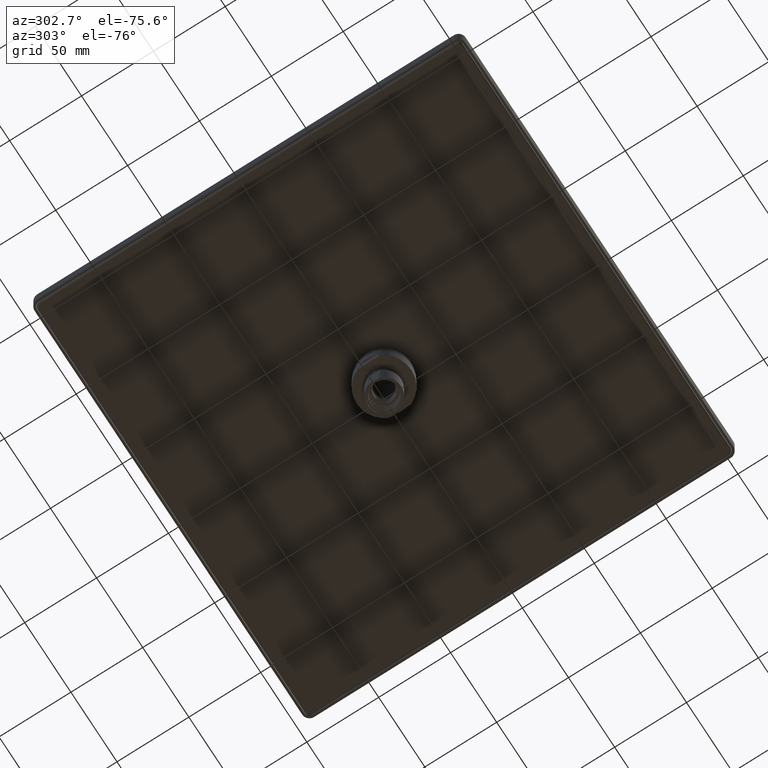
[diagram: clean part render]
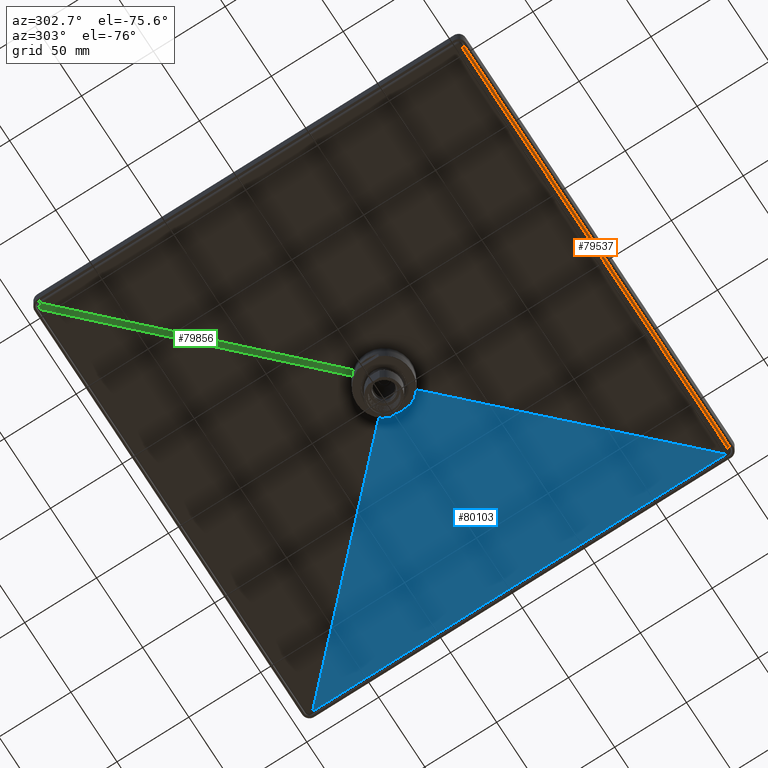
[diagram: same view with three faces highlighted in distinct colors, each labeled with its STEP entity id]
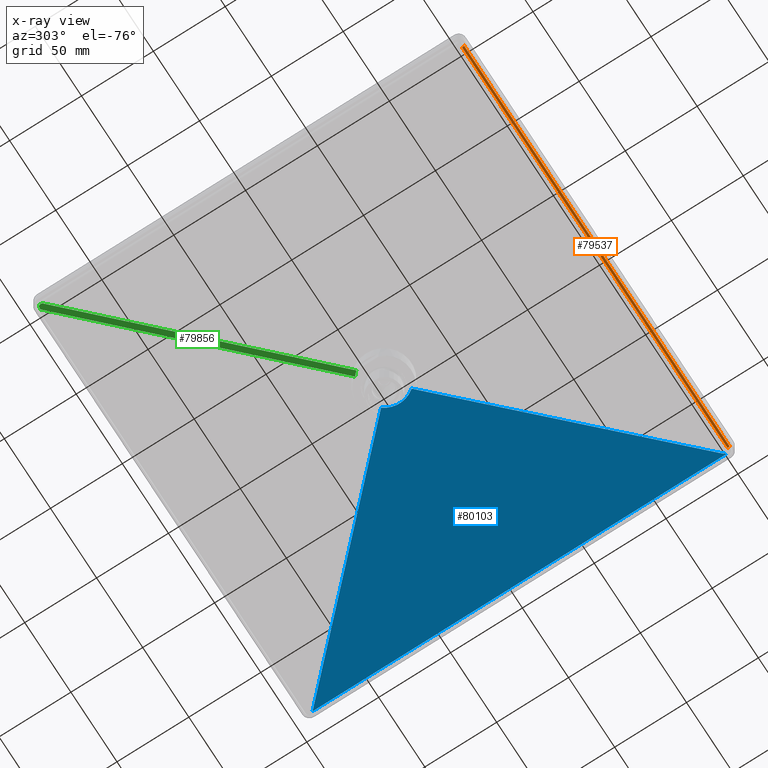
[diagram: x-ray of the same camera — body ghosted, the three highlighted faces saturated]
A machine part, auxiliary view with three faces highlighted in distinct colors.
The next image is the same camera in x-ray (body ghosted, the three faces saturated) — at least one of them is partly hidden behind the body in this view.
Their STEP definitions:

[orange] entity #79537 — the highlighted cylindrical surface (edge-blend (fillet) strip) has radius 1.5 mm, axis along (1, 0, 0).
#78460=DIRECTION('',(-1.E0,2.430451766408E-14,-5.996861040177E-12));
#78461=VECTOR('',#78460,1.132856508047E1);
#78462=CARTESIAN_POINT('',(5.664282540236E0,-5.830708661417E0,
-2.872554226659E-2));
#78463=LINE('',#78462,#78461);
#78464=DIRECTION('',(1.E0,5.746842402508E-14,-3.654693841650E-12));
#78465=VECTOR('',#78464,1.132856508047E1);
#78466=CARTESIAN_POINT('',(-5.664282540236E0,-5.772464911086E0,
3.032785483883E-2));
#78467=LINE('',#78466,#78465);
#78598=CARTESIAN_POINT('',(5.664282539999E0,-5.771653543309E0,
-2.872168948316E-2));
#78599=DIRECTION('',(-1.E0,-7.676146789291E-11,6.005432839082E-9));
#78600=DIRECTION('',(7.676324761356E-11,-1.E0,4.292257000937E-9));
#78601=AXIS2_PLACEMENT_3D('',#78598,#78599,#78600);
#78849=CARTESIAN_POINT('',(-5.664282538910E0,-5.771653543308E0,
-2.872168931831E-2));
#78850=DIRECTION('',(1.E0,-1.056758697700E-10,3.318102306347E-8));
#78851=DIRECTION('',(-3.317934963955E-8,-1.373916102311E-2,9.999056132728E-1));
#78852=AXIS2_PLACEMENT_3D('',#78849,#78850,#78851);
#79224=CARTESIAN_POINT('',(-5.664282540236E0,-5.772464911086E0,
3.032785483883E-2));
#79225=CARTESIAN_POINT('',(5.664282540234E0,-5.772464911086E0,
3.032785479742E-2));
#79226=VERTEX_POINT('',#79224);
#79227=VERTEX_POINT('',#79225);
#79228=CARTESIAN_POINT('',(5.664282540236E0,-5.830708661417E0,
-2.872554226659E-2));
#79229=CARTESIAN_POINT('',(-5.664282540236E0,-5.830708661417E0,
-2.872554233452E-2));
#79230=VERTEX_POINT('',#79228);
#79231=VERTEX_POINT('',#79229);
#79523=CARTESIAN_POINT('',(5.718419370079E0,-5.771653543307E0,
-2.872168922969E-2));
#79524=DIRECTION('',(-1.E0,0.E0,0.E0));
#79525=DIRECTION('',(0.E0,-1.E0,0.E0));
#79526=AXIS2_PLACEMENT_3D('',#79523,#79524,#79525);
#79527=CYLINDRICAL_SURFACE('',#79526,5.905511811024E-2);
#79529=ORIENTED_EDGE('',*,*,#79528,.T.);
#79531=ORIENTED_EDGE('',*,*,#79530,.F.);
#79532=ORIENTED_EDGE('',*,*,#79512,.T.);
#79534=ORIENTED_EDGE('',*,*,#79533,.F.);
#79535=EDGE_LOOP('',(#79529,#79531,#79532,#79534));
#79536=FACE_OUTER_BOUND('',#79535,.F.);
#79537=ADVANCED_FACE('',(#79536),#79527,.T.);
#78602=CIRCLE('',#78601,5.905511810770E-2);
#78853=CIRCLE('',#78852,5.905511810770E-2);
#79512=EDGE_CURVE('',#79226,#79227,#78467,.T.);
#79528=EDGE_CURVE('',#79230,#79231,#78463,.T.);
#79530=EDGE_CURVE('',#79226,#79231,#78853,.T.);
#79533=EDGE_CURVE('',#79230,#79227,#78602,.T.);

[blue] entity #80103 — the highlighted planar face has unit normal (-0.0137, 0, 0.9999).
#78432=CARTESIAN_POINT('',(-5.270524384851E-1,-4.188700676340E-1,
1.024022247137E-1));
#78433=CARTESIAN_POINT('',(-5.825346260716E-1,-3.490583896950E-1,
1.016398740446E-1));
#78434=CARTESIAN_POINT('',(-6.517643601838E-1,-2.094350338170E-1,
1.006886257896E-1));
#78435=CARTESIAN_POINT('',(-6.839603395931E-1,0.E0,1.002462382863E-1));
#78436=CARTESIAN_POINT('',(-6.517643601838E-1,2.094350338170E-1,
1.006886257896E-1));
#78437=CARTESIAN_POINT('',(-5.825346260716E-1,3.490583896950E-1,
1.016398740446E-1));
#78438=CARTESIAN_POINT('',(-5.270524384851E-1,4.188700676340E-1,
1.024022247137E-1));
#78744=CARTESIAN_POINT('',(-5.772464911086E0,5.664282540236E0,
3.032785483883E-2));
#78805=DIRECTION('',(-1.144664380308E-14,-1.E0,-3.300161490433E-12));
#78806=VECTOR('',#78805,1.132856508047E1);
#78807=CARTESIAN_POINT('',(-5.772464911086E0,5.664282540236E0,
3.032785483883E-2));
#78808=LINE('',#78807,#78806);
#78809=DIRECTION('',(7.070734080761E-1,-7.070734080764E-1,9.715512480473E-3));
#78810=VECTOR('',#78809,7.418483586977E0);
#78811=CARTESIAN_POINT('',(-5.772464911086E0,5.664282540236E0,
3.032785483883E-2));
#78812=LINE('',#78811,#78810);
#78813=DIRECTION('',(-7.070734080761E-1,-7.070734080764E-1,-9.715512485512E-3));
#78814=VECTOR('',#78813,7.418483586977E0);
#78815=CARTESIAN_POINT('',(-5.270524384860E-1,-4.188700676332E-1,
1.024022247143E-1));
#78816=LINE('',#78815,#78814);
#78837=CARTESIAN_POINT('',(-5.270524384860E-1,-4.188700676332E-1,
1.024022247143E-1));
#79220=VERTEX_POINT('',#78837);
#79221=VERTEX_POINT('',#78438);
#79302=VERTEX_POINT('',#78744);
#79305=CARTESIAN_POINT('',(-5.772464911086E0,-5.664282540236E0,
3.032785480144E-2));
#79306=VERTEX_POINT('',#79305);
#80091=CARTESIAN_POINT('',(-1.181102362205E-1,-9.862204724409E0,
1.080212778746E-1));
#80092=DIRECTION('',(1.373916109839E-2,0.E0,-9.999056132717E-1));
#80093=DIRECTION('',(-9.999056132717E-1,0.E0,-1.373916109839E-2));
#80094=AXIS2_PLACEMENT_3D('',#80091,#80092,#80093);
#80095=PLANE('',#80094);
#80096=ORIENTED_EDGE('',*,*,#80084,.F.);
#80097=ORIENTED_EDGE('',*,*,#79985,.T.);
#80098=ORIENTED_EDGE('',*,*,#79491,.F.);
#80100=ORIENTED_EDGE('',*,*,#80099,.T.);
#80101=EDGE_LOOP('',(#80096,#80097,#80098,#80100));
#80102=FACE_OUTER_BOUND('',#80101,.F.);
#80103=ADVANCED_FACE('',(#80102),#80095,.F.);
#78439=B_SPLINE_CURVE_WITH_KNOTS('',3,(#78432,#78433,#78434,#78435,#78436,
#78437,#78438),.UNSPECIFIED.,.F.,.F.,(4,1,1,1,4),(0.E0,2.5E-1,5.E-1,7.5E-1,
1.E0),.UNSPECIFIED.);
#79491=EDGE_CURVE('',#79220,#79221,#78439,.T.);
#79985=EDGE_CURVE('',#79302,#79221,#78812,.T.);
#80084=EDGE_CURVE('',#79302,#79306,#78808,.T.);
#80099=EDGE_CURVE('',#79220,#79306,#78816,.T.);

[green] entity #79856 — the highlighted cylindrical surface (partial cylindrical patch) has radius 200 mm, axis along (-0.7071, 0.7071, 0.0097).
#78661=DIRECTION('',(7.070734080760E-1,7.070734080765E-1,-9.715512486017E-3));
#78662=VECTOR('',#78661,7.418483586976E0);
#78663=CARTESIAN_POINT('',(5.270524384869E-1,4.188700676318E-1,
1.024022247140E-1));
#78664=LINE('',#78663,#78662);
#78665=CARTESIAN_POINT('',(5.664282540235E0,5.772464911087E0,
3.032785484125E-2));
#78666=CARTESIAN_POINT('',(5.669671128555E0,5.772444629747E0,
3.032813342311E-2));
#78667=CARTESIAN_POINT('',(5.680448396919E0,5.772404066377E0,
3.032311663211E-2));
#78668=CARTESIAN_POINT('',(5.696614555149E0,5.772343219634E0,
3.029886823988E-2));
#78669=CARTESIAN_POINT('',(5.707392157285E0,5.772302653865E0,
3.027155357944E-2));
#78670=CARTESIAN_POINT('',(5.712780994102E0,5.772282370714E0,
3.025510909337E-2));
#78672=CARTESIAN_POINT('',(5.712780994102E0,5.772282370714E0,
3.025510909337E-2));
#78673=CARTESIAN_POINT('',(5.728303599652E0,5.772222870588E0,
3.020774861702E-2));
#78674=CARTESIAN_POINT('',(5.759261883710E0,5.759261595850E0,
3.019118320876E-2));
#78675=CARTESIAN_POINT('',(5.772222961086E0,5.728304345890E0,
3.020774585242E-2));
#78676=CARTESIAN_POINT('',(5.772282370716E0,5.712780992377E0,
3.025510903017E-2));
#78678=CARTESIAN_POINT('',(5.772282370716E0,5.712780992377E0,
3.025510903017E-2));
#78679=CARTESIAN_POINT('',(5.772302653867E0,5.707392155567E0,
3.027155359257E-2));
#78680=CARTESIAN_POINT('',(5.772343219631E0,5.696614555974E0,
3.029886823814E-2));
#78681=CARTESIAN_POINT('',(5.772404066377E0,5.680448396708E0,
3.032311661843E-2));
#78682=CARTESIAN_POINT('',(5.772444629742E0,5.669671128564E0,
3.032813345621E-2));
#78683=CARTESIAN_POINT('',(5.772464911086E0,5.664282540234E0,
3.032785479742E-2));
#78685=CARTESIAN_POINT('',(5.270524384869E-1,4.188700676318E-1,
1.024022247140E-1));
#78686=CARTESIAN_POINT('',(5.164330672138E-1,4.322321241673E-1,
1.025481397391E-1));
#78687=CARTESIAN_POINT('',(4.942545533960E-1,4.580608113299E-1,
1.027435984438E-1));
#78688=CARTESIAN_POINT('',(4.580608113305E-1,4.942545533954E-1,
1.027435984438E-1));
#78689=CARTESIAN_POINT('',(4.322321241685E-1,5.164330672127E-1,
1.025481397391E-1));
#78690=CARTESIAN_POINT('',(4.188700676331E-1,5.270524384858E-1,
1.024022247140E-1));
#78730=DIRECTION('',(-7.070734080764E-1,-7.070734080762E-1,9.715512480108E-3));
#78731=VECTOR('',#78730,7.418483586976E0);
#78732=CARTESIAN_POINT('',(5.664282540235E0,5.772464911087E0,
3.032785484125E-2));
#78733=LINE('',#78732,#78731);
#78734=CARTESIAN_POINT('',(4.188700676331E-1,5.270524384858E-1,
1.024022247137E-1));
#79190=VERTEX_POINT('',#78734);
#79191=VERTEX_POINT('',#78685);
#79295=CARTESIAN_POINT('',(5.772464911086E0,5.664282540234E0,
3.032785479742E-2));
#79296=VERTEX_POINT('',#79295);
#79297=VERTEX_POINT('',#78665);
#79298=VERTEX_POINT('',#78670);
#79299=VERTEX_POINT('',#78676);
#79839=CARTESIAN_POINT('',(-2.103253228346E1,-2.103253228346E1,
-7.476118227358E0));
#79840=DIRECTION('',(7.070734080763E-1,7.070734080764E-1,-9.715512477384E-3));
#79841=DIRECTION('',(0.E0,1.373916109839E-2,9.999056132717E-1));
#79842=AXIS2_PLACEMENT_3D('',#79839,#79840,#79841);
#79843=CYLINDRICAL_SURFACE('',#79842,7.874015748031E0);
#79845=ORIENTED_EDGE('',*,*,#79844,.T.);
#79847=ORIENTED_EDGE('',*,*,#79846,.T.);
#79849=ORIENTED_EDGE('',*,*,#79848,.T.);
#79850=ORIENTED_EDGE('',*,*,#79834,.F.);
#79851=ORIENTED_EDGE('',*,*,#79358,.T.);
#79853=ORIENTED_EDGE('',*,*,#79852,.F.);
#79854=EDGE_LOOP('',(#79845,#79847,#79849,#79850,#79851,#79853));
#79855=FACE_OUTER_BOUND('',#79854,.F.);
#79856=ADVANCED_FACE('',(#79855),#79843,.T.);
#78671=B_SPLINE_CURVE_WITH_KNOTS('',3,(#78665,#78666,#78667,#78668,#78669,
#78670),.UNSPECIFIED.,.F.,.F.,(4,1,1,4),(0.E0,3.333333333333E-1,
6.666666666667E-1,1.E0),.UNSPECIFIED.);
#78677=B_SPLINE_CURVE_WITH_KNOTS('',3,(#78672,#78673,#78674,#78675,#78676),
.UNSPECIFIED.,.F.,.F.,(4,1,4),(0.E0,5.E-1,1.E0),.UNSPECIFIED.);
#78684=B_SPLINE_CURVE_WITH_KNOTS('',3,(#78678,#78679,#78680,#78681,#78682,
#78683),.UNSPECIFIED.,.F.,.F.,(4,1,1,4),(0.E0,3.333333333333E-1,
6.666666666667E-1,1.E0),.UNSPECIFIED.);
#78691=B_SPLINE_CURVE_WITH_KNOTS('',3,(#78685,#78686,#78687,#78688,#78689,
#78690),.UNSPECIFIED.,.F.,.F.,(4,1,1,4),(0.E0,3.333333333333E-1,
6.666666666667E-1,1.E0),.UNSPECIFIED.);
#79358=EDGE_CURVE('',#79191,#79190,#78691,.T.);
#79834=EDGE_CURVE('',#79191,#79296,#78664,.T.);
#79844=EDGE_CURVE('',#79297,#79298,#78671,.T.);
#79846=EDGE_CURVE('',#79298,#79299,#78677,.T.);
#79848=EDGE_CURVE('',#79299,#79296,#78684,.T.);
#79852=EDGE_CURVE('',#79297,#79190,#78733,.T.);